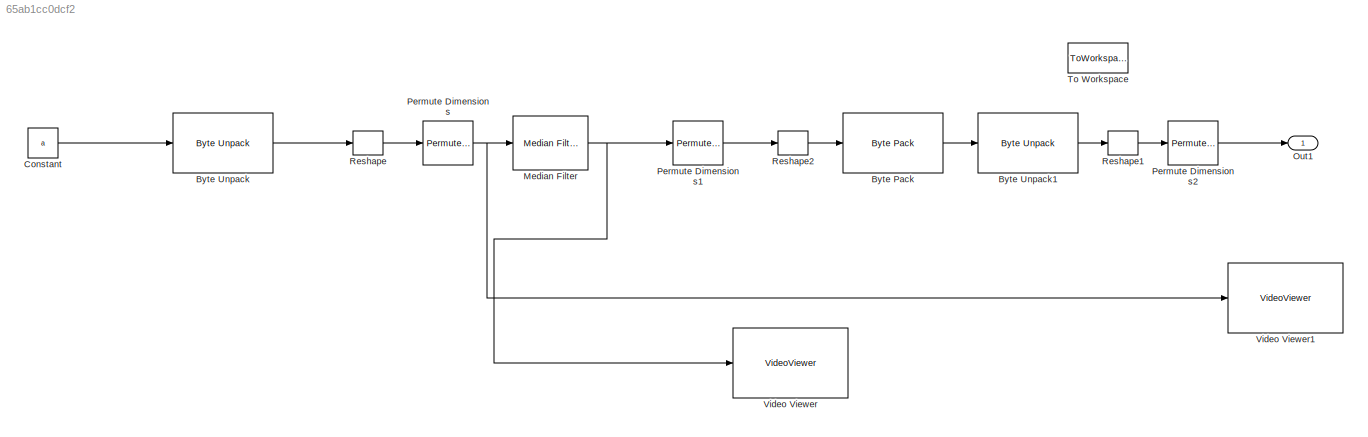
MODEL slx_65ab1cc0dcf2
KIND model
CONFIG AbsTol = auto
CONFIG EnableMultiTasking = off
CONFIG FixedStep = 1
CONFIG MaxStep = auto
CONFIG MinStep = auto
CONFIG RelTol = 1e-3
CONFIG SampleTimeConstraint = Unconstrained
CONFIG Solver = FixedStepAuto
CONFIG SolverName = FixedStepAuto
CONFIG StartTime = 0.0
CONFIG StopTime = 1
WORKSPACE source: MAT-file member
WORKSPACE SL_ROS_VariableLengthArrays_MaxSizes: struct (value not decoded)
BLOCK [Reference] Byte Pack  REF=svdutilitieslib/Byte Pack
  Ports = [1, 1]
  SourceBlock = svdutilitieslib/Byte Pack
  SourceProductBaseCode = ARDUINO
  SourceProductName = Simulink Support Package for Arduino Hardware
  SourceType = Byte pack
BLOCK [Reference] Byte Unpack  REF=svdutilitieslib/Byte Unpack
  Ports = [1, 1]
  SourceBlock = svdutilitieslib/Byte Unpack
  SourceProductBaseCode = ARDUINO
  SourceProductName = Simulink Support Package for Arduino Hardware
  SourceType = Byte Unpack
BLOCK [Reference] Byte Unpack1  REF=svdutilitieslib/Byte Unpack
  Ports = [1, 1]
  SourceBlock = svdutilitieslib/Byte Unpack
  SourceProductBaseCode = ARDUINO
  SourceProductName = Simulink Support Package for Arduino Hardware
  SourceType = Byte Unpack
BLOCK [Constant] Constant
  Value = a
BLOCK [Reference] Median Filter  REF=visionanalysis/Median Filter
  Ports = [1, 1]
  SourceBlock = visionanalysis/Median Filter
  SourceProductBaseCode = VP
  SourceProductName = Computer Vision System Toolbox
  SourceType = Median Filter
BLOCK [Outport] Out1
  IconDisplay = Port number
BLOCK [PermuteDimensions] Permute Dimensions
BLOCK [PermuteDimensions] Permute Dimensions1
BLOCK [PermuteDimensions] Permute Dimensions2
BLOCK [Reshape] Reshape
  OutputDimensionality = Customize
  OutputDimensions = [1920,1080]
  Ports = [1, 1]
BLOCK [Reshape] Reshape1
  OutputDimensionality = Customize
  OutputDimensions = [1920,1080]
  Ports = [1, 1]
BLOCK [Reshape] Reshape2
  OutputDimensions = [1920,1080]
  Ports = [1, 1]
BLOCK [ToWorkspace] To Workspace
  FixptAsFi = on
  MaxDataPoints = inf
  Ports = [1]
  SampleTime = -1
  Save2DSignal = 3-D array (concatenate along third dimension)
  VariableName = filtered_a
BLOCK [VideoViewer] Video Viewer
  FigPos = [1 1030 1280 630]
  Ports = [1]
  ScopeSpecificationString = vipscopes.VideoViewerScopeCfg('CurrentConfiguration', extmgr.ConfigurationSet(extmgr.Configuration('Core','General UI',true),extmgr.Configuration('Core','Source UI',true),extmgr.Configuration('Sources','WiredSimulink',true),extmgr.Configuration('Visuals','Video',true),extmgr.Configuration('Tools','Image Navigation Tools',true),extmgr.Configuration('Tools','Image Tool',true),extmgr.Configuration('T...<+73ch>
BLOCK [VideoViewer] Video Viewer1
  FigPos = [1 1030 1680 880]
  Ports = [1]
  ScopeSpecificationString = vipscopes.VideoViewerScopeCfg('CurrentConfiguration', extmgr.ConfigurationSet(extmgr.Configuration('Core','General UI',true),extmgr.Configuration('Core','Source UI',true),extmgr.Configuration('Sources','WiredSimulink',true),extmgr.Configuration('Visuals','Video',true),extmgr.Configuration('Tools','Image Navigation Tools',true),extmgr.Configuration('Tools','Image Tool',true),extmgr.Configuration('T...<+73ch>
LINE Byte Pack:1 -> Byte Unpack1:1
LINE Byte Unpack1:1 -> Reshape1:1
LINE Byte Unpack:1 -> Reshape:1
LINE Constant:1 -> Byte Unpack:1
NET Median Filter:1 -> Permute Dimensions1:1, Video Viewer:1
LINE Permute Dimensions1:1 -> Reshape2:1
LINE Permute Dimensions2:1 -> Out1:1
NET Permute Dimensions:1 -> Median Filter:1, Video Viewer1:1
LINE Reshape1:1 -> Permute Dimensions2:1
LINE Reshape2:1 -> Byte Pack:1
LINE Reshape:1 -> Permute Dimensions:1
note: NET lines group one-source signal fan-out (src -> all destinations, sorted); 1:1 wires keep LINE
